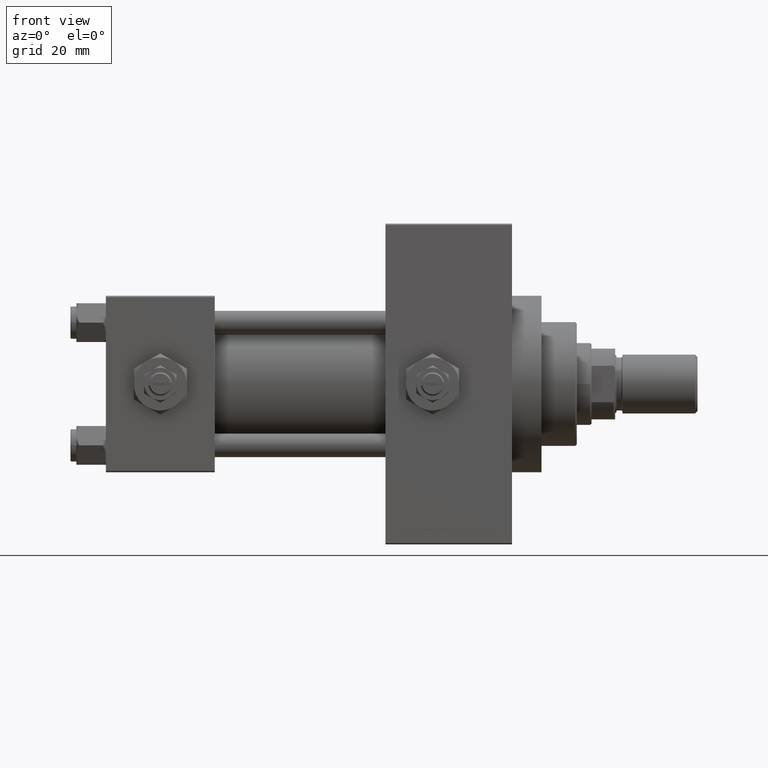
[diagram: clean part render]
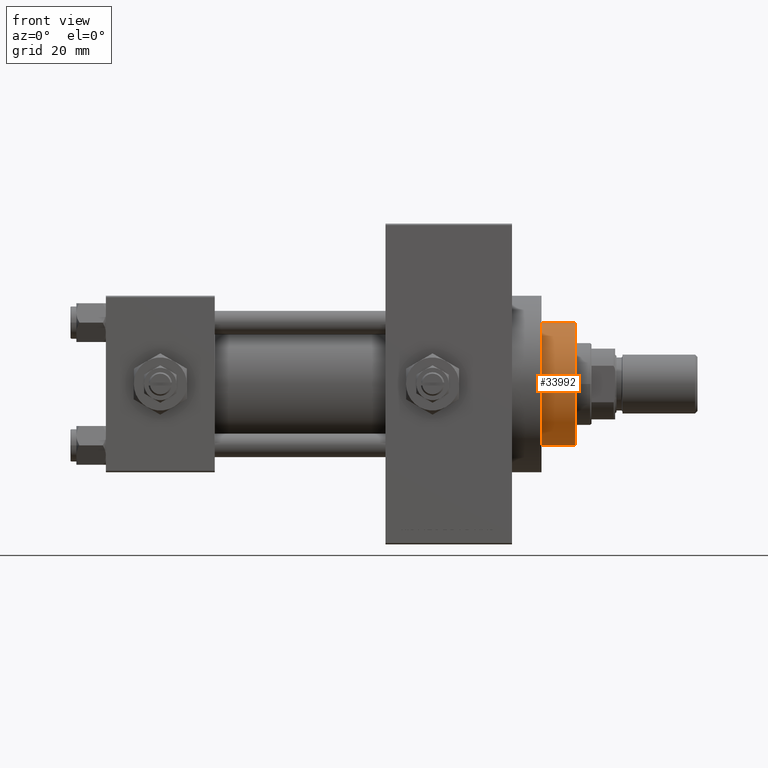
[diagram: same view with one face highlighted and labeled with its STEP entity id]
A machine part, front view. The second image highlights one B-rep face of the part: STEP entity #33992.
In plain terms, the highlighted cylindrical surface (partial cylindrical patch) has radius 21 mm, axis along (-1, 0, 0).
Its self-contained STEP definition (entity closure, byte-faithful):
#532 = CARTESIAN_POINT ( 'NONE',  ( 0.000000000000000000, 0.000000000000000000, 43.25999999999999801 ) ) ;
#3169 = AXIS2_PLACEMENT_3D ( 'NONE', #532, #8324, #23684 ) ;
#4279 = CARTESIAN_POINT ( 'NONE',  ( 21.00000000000000000, 2.571758278209441661E-15, 55.26000000000000512 ) ) ;
#4362 = VERTEX_POINT ( 'NONE', #41927 ) ;
#8324 = DIRECTION ( 'NONE',  ( 0.000000000000000000, 0.000000000000000000, 1.000000000000000000 ) ) ;
#8682 = ORIENTED_EDGE ( 'NONE', *, *, #29718, .T. ) ;
#8785 = DIRECTION ( 'NONE',  ( -0.000000000000000000, -0.000000000000000000, -1.000000000000000000 ) ) ;
#10944 = AXIS2_PLACEMENT_3D ( 'NONE', #23128, #42239, #37959 ) ;
#13823 = DIRECTION ( 'NONE',  ( 0.000000000000000000, 0.000000000000000000, -1.000000000000000000 ) ) ;
#15578 = FACE_OUTER_BOUND ( 'NONE', #40406, .T. ) ;
#15625 = VERTEX_POINT ( 'NONE', #24822 ) ;
#16610 = AXIS2_PLACEMENT_3D ( 'NONE', #17865, #13823, #33441 ) ;
#16740 = ORIENTED_EDGE ( 'NONE', *, *, #45126, .T. ) ;
#17865 = CARTESIAN_POINT ( 'NONE',  ( 0.000000000000000000, 0.000000000000000000, 54.75999999999999091 ) ) ;
#19036 = CARTESIAN_POINT ( 'NONE',  ( 21.00000000000000000, 2.571758278209441661E-15, 54.75999999999999091 ) ) ;
#23128 = CARTESIAN_POINT ( 'NONE',  ( 0.000000000000000000, 0.000000000000000000, 55.26000000000000512 ) ) ;
#23312 = CARTESIAN_POINT ( 'NONE',  ( -21.00000000000000000, 0.000000000000000000, 54.75999999999999091 ) ) ;
#23420 = LINE ( 'NONE', #46287, #27695 ) ;
#23684 = DIRECTION ( 'NONE',  ( 1.000000000000000000, 0.000000000000000000, 0.000000000000000000 ) ) ;
#24822 = CARTESIAN_POINT ( 'NONE',  ( -21.00000000000000000, 0.000000000000000000, 43.25999999999999801 ) ) ;
#26142 = CYLINDRICAL_SURFACE ( 'NONE', #10944, 21.00000000000000000 ) ;
#27695 = VECTOR ( 'NONE', #31692, 1000.000000000000000 ) ;
#29718 = EDGE_CURVE ( 'NONE', #37695, #4362, #43519, .T. ) ;
#29770 = EDGE_CURVE ( 'NONE', #42034, #15625, #23420, .T. ) ;
#31692 = DIRECTION ( 'NONE',  ( -0.000000000000000000, -0.000000000000000000, -1.000000000000000000 ) ) ;
#33441 = DIRECTION ( 'NONE',  ( 1.000000000000000000, 0.000000000000000000, 0.000000000000000000 ) ) ;
#33932 = EDGE_CURVE ( 'NONE', #42034, #37695, #38289, .T. ) ;
#33992 = ADVANCED_FACE ( 'NONE', ( #15578 ), #26142, .T. ) ;
#36162 = ORIENTED_EDGE ( 'NONE', *, *, #33932, .T. ) ;
#37695 = VERTEX_POINT ( 'NONE', #19036 ) ;
#37959 = DIRECTION ( 'NONE',  ( -1.000000000000000000, 0.000000000000000000, 0.000000000000000000 ) ) ;
#38143 = VECTOR ( 'NONE', #8785, 1000.000000000000000 ) ;
#38289 = CIRCLE ( 'NONE', #16610, 21.00000000000000000 ) ;
#40129 = CIRCLE ( 'NONE', #3169, 21.00000000000000000 ) ;
#40406 = EDGE_LOOP ( 'NONE', ( #36162, #8682, #16740, #45855 ) ) ;
#41927 = CARTESIAN_POINT ( 'NONE',  ( 21.00000000000000000, 2.571758278209441661E-15, 43.25999999999999801 ) ) ;
#42034 = VERTEX_POINT ( 'NONE', #23312 ) ;
#42239 = DIRECTION ( 'NONE',  ( -0.000000000000000000, -0.000000000000000000, -1.000000000000000000 ) ) ;
#43519 = LINE ( 'NONE', #4279, #38143 ) ;
#45126 = EDGE_CURVE ( 'NONE', #4362, #15625, #40129, .T. ) ;
#45855 = ORIENTED_EDGE ( 'NONE', *, *, #29770, .F. ) ;
#46287 = CARTESIAN_POINT ( 'NONE',  ( -21.00000000000000000, 0.000000000000000000, 55.26000000000000512 ) ) ;